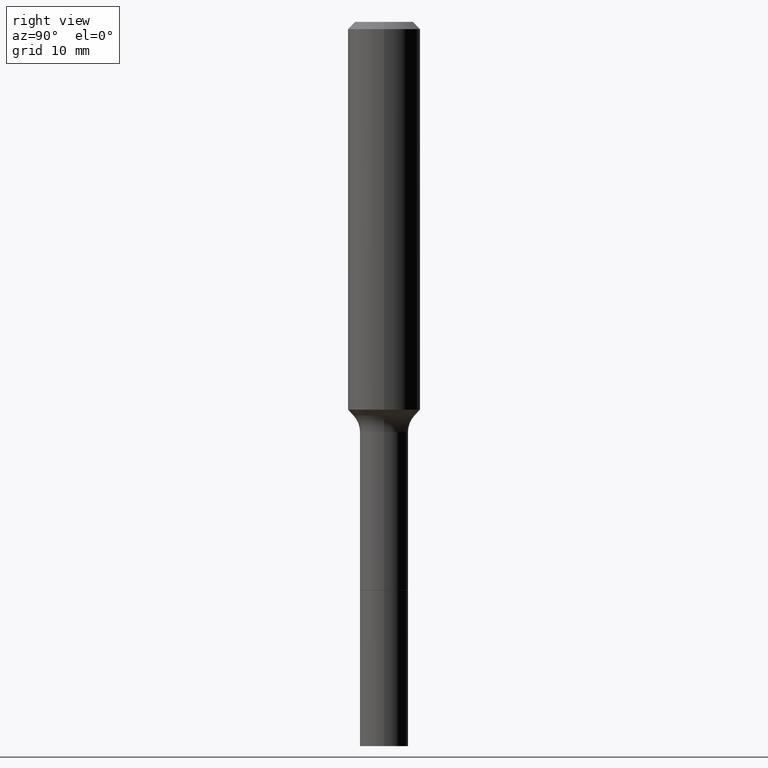
[diagram: clean part render]
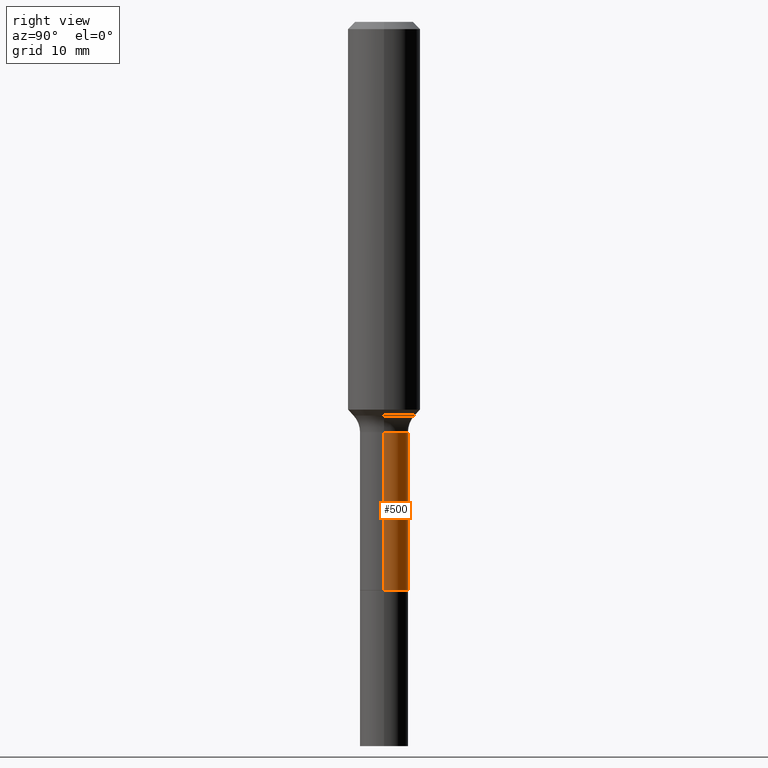
[diagram: same view with one face highlighted and labeled with its STEP entity id]
A machine part, right view. The second image highlights one B-rep face of the part: STEP entity #500.
In plain terms, the highlighted cylindrical surface (edge-blend (fillet) strip) has radius 2.0002 mm, axis along (-0, 0, 1).
Its self-contained STEP definition (entity closure, byte-faithful):
#25 = VERTEX_POINT ( 'NONE', #310 ) ;
#35 = AXIS2_PLACEMENT_3D ( 'NONE', #298, #375, #61 ) ;
#45 = CARTESIAN_POINT ( 'NONE',  ( -0.07874999999999994504, 5.595524044110785059E-16, -3.873661383575735690E-30 ) ) ;
#51 = CARTESIAN_POINT ( 'NONE',  ( 0.07875000000000000056, -7.022067268681332845E-15, -1.853700000000000125 ) ) ;
#55 = DIRECTION ( 'NONE',  ( -2.445468806185136597E-29, 3.491481338843145583E-15, 1.000000000000000000 ) ) ;
#61 = DIRECTION ( 'NONE',  ( 1.000000000000000000, -6.982962677686261977E-15, 0.000000000000000000 ) ) ;
#81 = LINE ( 'NONE', #45, #226 ) ;
#106 = FACE_OUTER_BOUND ( 'NONE', #225, .T. ) ;
#110 = VECTOR ( 'NONE', #127, 39.37007874015748143 ) ;
#113 = ORIENTED_EDGE ( 'NONE', *, *, #467, .T. ) ;
#127 = DIRECTION ( 'NONE',  ( -2.445468806185136877E-29, 3.491481338843145188E-15, 1.000000000000000000 ) ) ;
#149 = CIRCLE ( 'NONE', #35, 0.07875000000000000056 ) ;
#158 = CARTESIAN_POINT ( 'NONE',  ( 3.272526356436949336E-29, -4.672300327639896745E-15, -1.338200000000000056 ) ) ;
#162 = AXIS2_PLACEMENT_3D ( 'NONE', #267, #55, #493 ) ;
#168 = CARTESIAN_POINT ( 'NONE',  ( 0.07874999999999991729, -5.222208638507690091E-15, -1.338200000000000056 ) ) ;
#204 = DIRECTION ( 'NONE',  ( 1.000000000000000000, -6.982962677686269866E-15, 0.000000000000000000 ) ) ;
#220 = ORIENTED_EDGE ( 'NONE', *, *, #292, .T. ) ;
#225 = EDGE_LOOP ( 'NONE', ( #113, #220, #392, #422 ) ) ;
#226 = VECTOR ( 'NONE', #402, 39.37007874015748143 ) ;
#267 = CARTESIAN_POINT ( 'NONE',  ( 0.000000000000000000, 0.000000000000000000, 0.000000000000000000 ) ) ;
#268 = VERTEX_POINT ( 'NONE', #168 ) ;
#278 = CIRCLE ( 'NONE', #337, 0.07874999999999991729 ) ;
#292 = EDGE_CURVE ( 'NONE', #25, #339, #81, .T. ) ;
#293 = LINE ( 'NONE', #481, #110 ) ;
#297 = VERTEX_POINT ( 'NONE', #51 ) ;
#298 = CARTESIAN_POINT ( 'NONE',  ( 4.533165526025388314E-29, -6.472158957813539500E-15, -1.853700000000000125 ) ) ;
#310 = CARTESIAN_POINT ( 'NONE',  ( -0.07875000000000000056, -5.012677238315638137E-15, -1.853700000000000125 ) ) ;
#328 = DIRECTION ( 'NONE',  ( -2.445468806185136597E-29, 3.491481338843145583E-15, 1.000000000000000000 ) ) ;
#337 = AXIS2_PLACEMENT_3D ( 'NONE', #158, #328, #204 ) ;
#339 = VERTEX_POINT ( 'NONE', #445 ) ;
#373 = EDGE_CURVE ( 'NONE', #268, #339, #278, .T. ) ;
#375 = DIRECTION ( 'NONE',  ( -2.445468806185136597E-29, 3.491481338843145583E-15, 1.000000000000000000 ) ) ;
#392 = ORIENTED_EDGE ( 'NONE', *, *, #373, .F. ) ;
#395 = EDGE_CURVE ( 'NONE', #297, #268, #293, .T. ) ;
#402 = DIRECTION ( 'NONE',  ( -2.445468806185136877E-29, 3.491481338843145188E-15, 1.000000000000000000 ) ) ;
#422 = ORIENTED_EDGE ( 'NONE', *, *, #395, .F. ) ;
#445 = CARTESIAN_POINT ( 'NONE',  ( -0.07874999999999991729, -5.012677238315638926E-15, -1.338200000000000056 ) ) ;
#467 = EDGE_CURVE ( 'NONE', #297, #25, #149, .T. ) ;
#481 = CARTESIAN_POINT ( 'NONE',  ( 0.07874999999999994504, -5.499083108677931485E-16, 3.839989210939296915E-30 ) ) ;
#493 = DIRECTION ( 'NONE',  ( 1.000000000000000000, -6.982962677686266711E-15, 4.876176775795935793E-29 ) ) ;
#497 = CYLINDRICAL_SURFACE ( 'NONE', #162, 0.07874999999999994504 ) ;
#500 = ADVANCED_FACE ( 'NONE', ( #106 ), #497, .T. ) ;